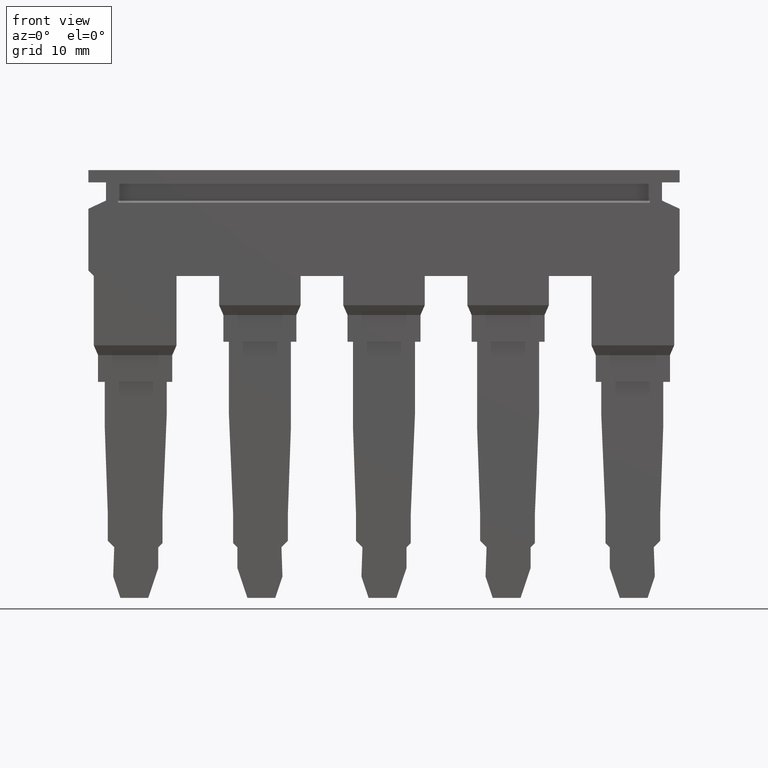
[diagram: clean part render]
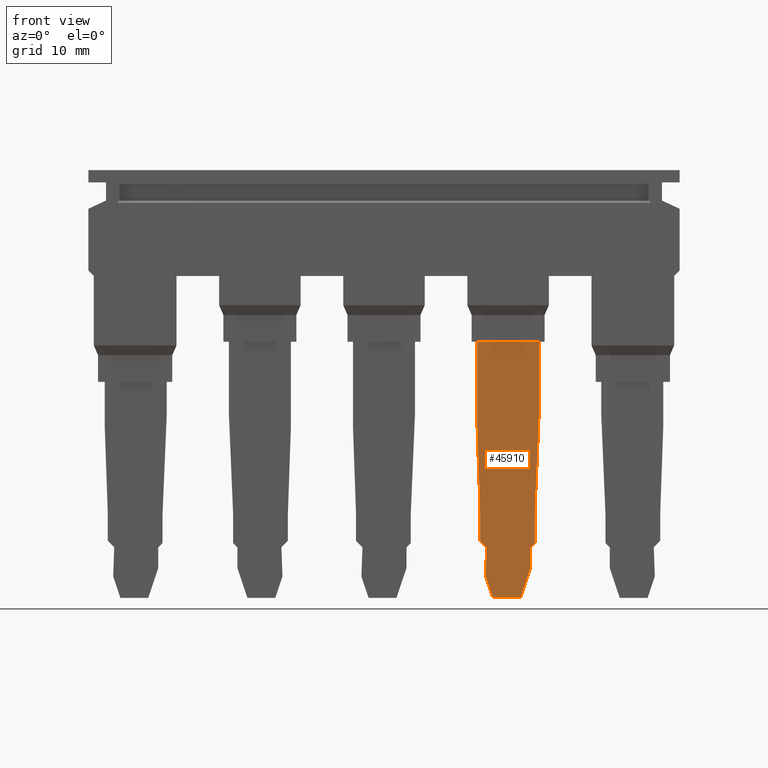
[diagram: same view with one face highlighted and labeled with its STEP entity id]
A machine part, front view. The second image highlights one B-rep face of the part: STEP entity #45910.
In plain terms, the highlighted planar face has unit normal (-0, -1, -0).
Its self-contained STEP definition (entity closure, byte-faithful):
#21050=CARTESIAN_POINT('',(-5.60000000012801,25.8999997693718,
-7.57500000163257));
#21060=VERTEX_POINT('',#21050);
#21230=CARTESIAN_POINT('',(-5.60000000012801,25.8999997693718,
-2.47500000163263));
#21240=VERTEX_POINT('',#21230);
#21270=CARTESIAN_POINT('',(-5.60000000012802,25.8999997693718,-15.225));
#21280=DIRECTION('',(1.77975831145923E-16,-1.16743491185646E-16,1.));
#21290=VECTOR('',#21280,1.);
#21300=LINE('',#21270,#21290);
#21310=EDGE_CURVE('',#21060,#21240,#21300,.T.);
#44330=CARTESIAN_POINT('',(-5.60000000012218,24.5659443925937,
-7.57500000163257));
#44340=DIRECTION('',(4.37230317964272E-12,-1.,-5.66553889766582E-16));
#44350=VECTOR('',#44340,1.);
#44360=LINE('',#44330,#44350);
#44370=CARTESIAN_POINT('',(-5.60000000009745,18.9090873678845,
-7.57500000163257));
#44380=VERTEX_POINT('',#44370);
#44390=EDGE_CURVE('',#21060,#44380,#44360,.T.);
#44640=CARTESIAN_POINT('',(-5.6000000000864,16.3823761632675,
4.20737639223576));
#44650=DIRECTION('',(-3.09155937981117E-12,0.707106781186408,
0.707106781186687));
#44660=VECTOR('',#44650,1.);
#44670=LINE('',#44640,#44660);
#44680=CARTESIAN_POINT('',(-5.60000000005412,8.99999976940201,
-3.17500000163269));
#44690=VERTEX_POINT('',#44680);
#44700=CARTESIAN_POINT('',(-5.60000000005565,9.34999976940193,
-2.82500000163262));
#44710=VERTEX_POINT('',#44700);
#44720=EDGE_CURVE('',#44690,#44710,#44670,.T.);
#44970=CARTESIAN_POINT('',(-5.6000000001494,30.7908432052245,
-14.5178932204461));
#44980=DIRECTION('',(-1.,-4.37230317964272E-12,1.77975831145412E-16));
#44990=DIRECTION('',(1.77975831145412E-16,7.78188944319931E-28,1.));
#45000=AXIS2_PLACEMENT_3D('',#44970,#44980,#44990);
#45010=PLANE('',#45000);
#45020=CARTESIAN_POINT('',(-5.6000000001494,30.7908432052245,
-7.32500000163263));
#45030=DIRECTION('',(4.37230317964272E-12,-1.,-2.27765793650851E-16));
#45040=VECTOR('',#45030,1.);
#45050=LINE('',#45020,#45040);
#45060=CARTESIAN_POINT('',(-5.60000000006615,11.7500240471581,
-7.32500000163264));
#45070=VERTEX_POINT('',#45060);
#45080=CARTESIAN_POINT('',(-5.60000000005645,9.53254160966813,
-7.32500000163264));
#45090=VERTEX_POINT('',#45080);
#45100=EDGE_CURVE('',#45070,#45090,#45050,.T.);
#45110=ORIENTED_EDGE('',*,*,#45100,.T.);
#45120=CARTESIAN_POINT('',(-5.60000000012218,24.5659443925976,
-7.77254180184038));
#45130=DIRECTION('',(4.36964590194829E-12,-0.999390827019096,
0.0348994967025043));
#45140=VECTOR('',#45130,1.);
#45150=LINE('',#45120,#45140);
#45160=EDGE_CURVE('',#44380,#45070,#45150,.T.);
#45170=ORIENTED_EDGE('',*,*,#45160,.T.);
#45180=ORIENTED_EDGE('',*,*,#44390,.T.);
#45190=ORIENTED_EDGE('',*,*,#21310,.F.);
#45200=CARTESIAN_POINT('',(-5.60000000012218,24.5659443925937,
-2.47500000163263));
#45210=DIRECTION('',(-4.37230317964272E-12,1.,5.66553889766582E-16));
#45220=VECTOR('',#45210,1.);
#45230=LINE('',#45200,#45220);
#45240=CARTESIAN_POINT('',(-5.60000000010236,20.0333290564389,
-2.47500000163263));
#45250=VERTEX_POINT('',#45240);
#45260=EDGE_CURVE('',#45250,#21240,#45230,.T.);
#45270=ORIENTED_EDGE('',*,*,#45260,.T.);
#45280=CARTESIAN_POINT('',(-5.60000000012218,24.5659443925976,
-2.28348038888409));
#45290=DIRECTION('',(-4.36839779041031E-12,0.999108507428431,
0.0422159967800467));
#45300=VECTOR('',#45290,1.);
#45310=LINE('',#45280,#45300);
#45320=CARTESIAN_POINT('',(-5.60000000006615,11.7500240471581,
-2.82500000163262));
#45330=VERTEX_POINT('',#45320);
#45340=EDGE_CURVE('',#45330,#45250,#45310,.T.);
#45350=ORIENTED_EDGE('',*,*,#45340,.T.);
#45360=CARTESIAN_POINT('',(-5.60000000012218,24.5659443925976,
-2.82500000163262));
#45370=DIRECTION('',(4.37230317964272E-12,-1.,-3.44509284841146E-16));
#45380=VECTOR('',#45370,1.);
#45390=LINE('',#45360,#45380);
#45400=EDGE_CURVE('',#45330,#44710,#45390,.T.);
#45410=ORIENTED_EDGE('',*,*,#45400,.F.);
#45420=ORIENTED_EDGE('',*,*,#44720,.T.);
#45430=CARTESIAN_POINT('',(-5.60000000012218,24.5659443925976,
-3.17500000163268));
#45440=DIRECTION('',(-4.37230317964272E-12,1.,4.55531587304066E-16));
#45450=VECTOR('',#45440,1.);
#45460=LINE('',#45430,#45450);
#45470=CARTESIAN_POINT('',(-5.60000000004669,7.29999976940201,
-3.17500000163269));
#45480=VERTEX_POINT('',#45470);
#45490=EDGE_CURVE('',#45480,#44690,#45460,.T.);
#45500=ORIENTED_EDGE('',*,*,#45490,.T.);
#45510=CARTESIAN_POINT('',(-5.60000000012218,24.5659443925976,
2.64402050254986));
#45520=DIRECTION('',(-4.14326509426784E-12,0.947629147539959,
0.319372820904801));
#45530=VECTOR('',#45520,1.);
#45540=LINE('',#45510,#45530);
#45550=CARTESIAN_POINT('',(-5.60000000003598,4.84999976940203,
-4.00070635864802));
#45560=VERTEX_POINT('',#45550);
#45570=EDGE_CURVE('',#45560,#45480,#45540,.T.);
#45580=ORIENTED_EDGE('',*,*,#45570,.T.);
#45590=CARTESIAN_POINT('',(-5.60000000003598,4.84999976940203,
4.30737639223574));
#45600=DIRECTION('',(1.77975831146408E-16,-2.2776579365012E-16,1.));
#45610=VECTOR('',#45600,1.);
#45620=LINE('',#45590,#45610);
#45630=CARTESIAN_POINT('',(-5.60000000003598,4.84999976940203,
-6.29047488129595));
#45640=VERTEX_POINT('',#45630);
#45650=EDGE_CURVE('',#45640,#45560,#45620,.T.);
#45660=ORIENTED_EDGE('',*,*,#45650,.T.);
#45670=CARTESIAN_POINT('',(-5.60000000012218,24.5659443925976,
-12.9352017424938));
#45680=DIRECTION('',(4.14337877555433E-12,-0.94762914753996,
0.3193728209048));
#45690=VECTOR('',#45680,1.);
#45700=LINE('',#45670,#45690);
#45710=CARTESIAN_POINT('',(-5.60000000004364,6.60160096189212,
-6.88080477500807));
#45720=VERTEX_POINT('',#45710);
#45730=EDGE_CURVE('',#45720,#45640,#45700,.T.);
#45740=ORIENTED_EDGE('',*,*,#45730,.T.);
#45750=CARTESIAN_POINT('',(-5.60000000012218,24.5659443925976,
-6.25347607899381));
#45760=DIRECTION('',(-4.36963347941443E-12,0.999390827019096,
0.0348994967025009));
#45770=VECTOR('',#45760,1.);
#45780=LINE('',#45750,#45770);
#45790=CARTESIAN_POINT('',(-5.60000000005414,9.00443748277158,
-6.79689587473608));
#45800=VERTEX_POINT('',#45790);
#45810=EDGE_CURVE('',#45720,#45800,#45780,.T.);
#45820=ORIENTED_EDGE('',*,*,#45810,.F.);
#45830=CARTESIAN_POINT('',(-5.6000000001494,30.7908432052245,
-28.583301597189));
#45840=DIRECTION('',(3.09181107564596E-12,-0.707106781186548,
0.707106781186547));
#45850=VECTOR('',#45840,1.);
#45860=LINE('',#45830,#45850);
#45870=EDGE_CURVE('',#45090,#45800,#45860,.T.);
#45880=ORIENTED_EDGE('',*,*,#45870,.T.);
#45890=EDGE_LOOP('',(#45880,#45820,#45740,#45660,#45580,#45500,#45420,
#45410,#45350,#45270,#45190,#45180,#45170,#45110));
#45900=FACE_OUTER_BOUND('',#45890,.T.);
#45910=ADVANCED_FACE('',(#45900),#45010,.T.);